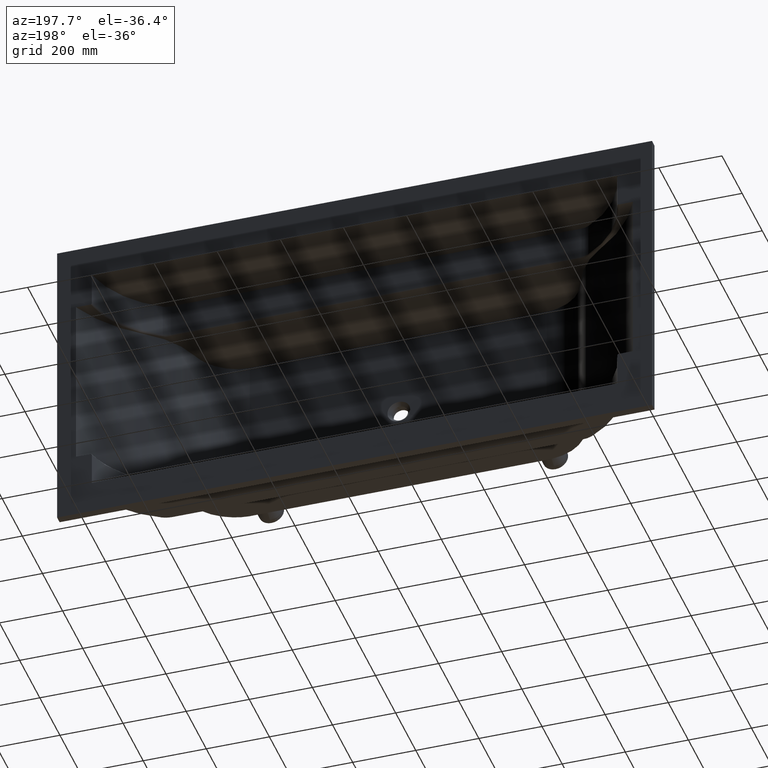
[diagram: clean part render]
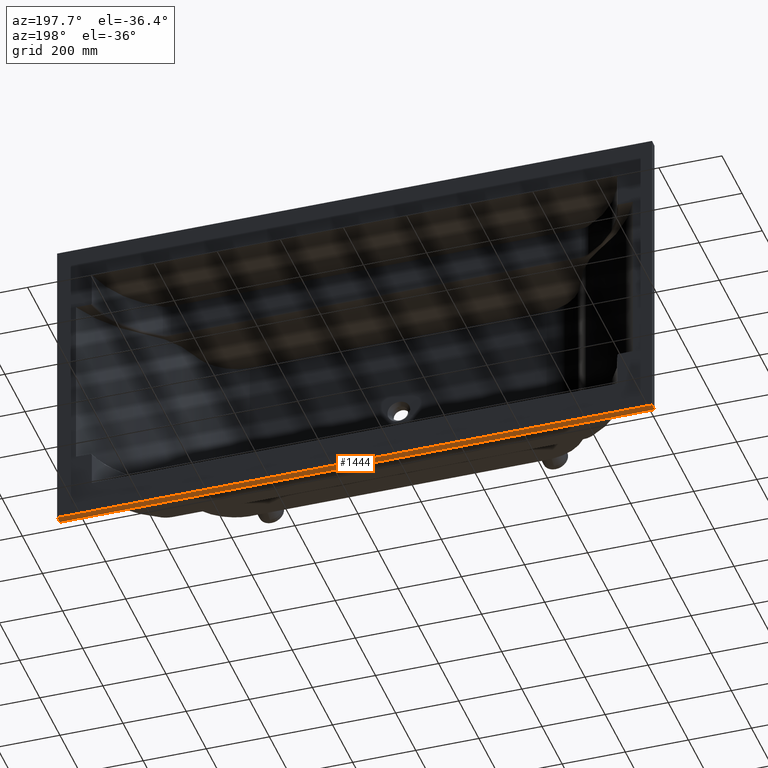
[diagram: same view with one face highlighted and labeled with its STEP entity id]
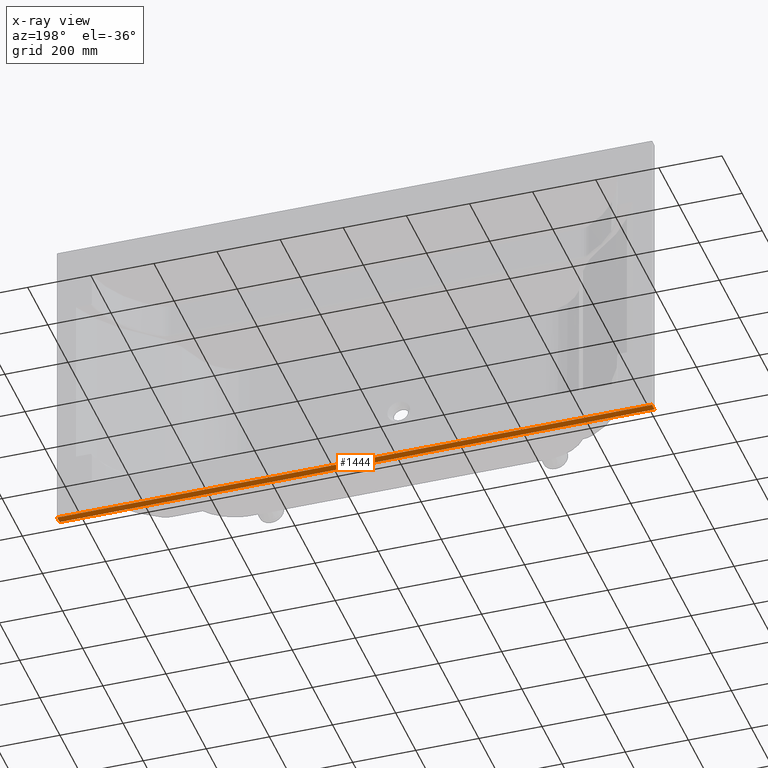
[diagram: x-ray of the same camera — body ghosted, the highlighted face saturated]
A machine part, auxiliary view. The second image highlights one B-rep face of the part: STEP entity #1444.
The next image is the same camera in x-ray: the body ghosted, the highlighted face saturated — about 0% of this face is hidden behind the body in this view.
In plain terms, the highlighted planar face has unit normal (0, 0, 1).
Its self-contained STEP definition (entity closure, byte-faithful):
#24 = PLANE ( 'NONE',  #2490 ) ;
#114 = VERTEX_POINT ( 'NONE', #409 ) ;
#131 = DIRECTION ( 'NONE',  ( -0.0000000000000000000, -1.000000000000000000, -0.0000000000000000000 ) ) ;
#304 = LINE ( 'NONE', #3903, #2663 ) ;
#409 = CARTESIAN_POINT ( 'NONE',  ( 1885.000000000000000, -9.999999999999998200, -990.0000000000000000 ) ) ;
#931 = DIRECTION ( 'NONE',  ( 1.000000000000000000, 0.0000000000000000000, -0.0000000000000000000 ) ) ;
#1038 = CARTESIAN_POINT ( 'NONE',  ( 1885.000000000000000, 15.00000000000000400, -990.0000000000000000 ) ) ;
#1114 = LINE ( 'NONE', #5572, #5433 ) ;
#1123 = CARTESIAN_POINT ( 'NONE',  ( 0.0000000000000000000, 15.00000000000000400, -990.0000000000000000 ) ) ;
#1172 = ORIENTED_EDGE ( 'NONE', *, *, #3179, .T. ) ;
#1282 = EDGE_CURVE ( 'NONE', #114, #3443, #304, .T. ) ;
#1306 = CARTESIAN_POINT ( 'NONE',  ( 0.0000000000000000000, 15.00000000000000400, -990.0000000000000000 ) ) ;
#1365 = CARTESIAN_POINT ( 'NONE',  ( 0.0000000000000000000, 15.00000000000000400, -990.0000000000000000 ) ) ;
#1383 = EDGE_CURVE ( 'NONE', #4559, #3032, #3582, .T. ) ;
#1444 = ADVANCED_FACE ( 'NONE', ( #5164 ), #24, .F. ) ;
#1477 = VECTOR ( 'NONE', #1612, 1000.000000000000000 ) ;
#1612 = DIRECTION ( 'NONE',  ( -0.0000000000000000000, -1.000000000000000000, -0.0000000000000000000 ) ) ;
#1842 = ORIENTED_EDGE ( 'NONE', *, *, #3912, .F. ) ;
#1929 = CARTESIAN_POINT ( 'NONE',  ( 0.0000000000000000000, -9.999999999999998200, -990.0000000000000000 ) ) ;
#2389 = VECTOR ( 'NONE', #3964, 1000.000000000000000 ) ;
#2490 = AXIS2_PLACEMENT_3D ( 'NONE', #1365, #3605, #931 ) ;
#2663 = VECTOR ( 'NONE', #5202, 1000.000000000000000 ) ;
#3032 = VERTEX_POINT ( 'NONE', #4707 ) ;
#3179 = EDGE_CURVE ( 'NONE', #4559, #114, #1114, .T. ) ;
#3443 = VERTEX_POINT ( 'NONE', #1929 ) ;
#3582 = LINE ( 'NONE', #1306, #2389 ) ;
#3605 = DIRECTION ( 'NONE',  ( 0.0000000000000000000, 0.0000000000000000000, 1.000000000000000000 ) ) ;
#3843 = LINE ( 'NONE', #1123, #1477 ) ;
#3903 = CARTESIAN_POINT ( 'NONE',  ( 1885.000000000000000, -9.999999999999998200, -990.0000000000000000 ) ) ;
#3912 = EDGE_CURVE ( 'NONE', #3032, #3443, #3843, .T. ) ;
#3964 = DIRECTION ( 'NONE',  ( -1.000000000000000000, -0.0000000000000000000, -0.0000000000000000000 ) ) ;
#4559 = VERTEX_POINT ( 'NONE', #1038 ) ;
#4707 = CARTESIAN_POINT ( 'NONE',  ( 0.0000000000000000000, 15.00000000000000400, -990.0000000000000000 ) ) ;
#5040 = ORIENTED_EDGE ( 'NONE', *, *, #1383, .F. ) ;
#5164 = FACE_OUTER_BOUND ( 'NONE', #5302, .T. ) ;
#5202 = DIRECTION ( 'NONE',  ( -1.000000000000000000, 0.0000000000000000000, 0.0000000000000000000 ) ) ;
#5244 = ORIENTED_EDGE ( 'NONE', *, *, #1282, .T. ) ;
#5302 = EDGE_LOOP ( 'NONE', ( #1172, #5244, #1842, #5040 ) ) ;
#5433 = VECTOR ( 'NONE', #131, 1000.000000000000000 ) ;
#5572 = CARTESIAN_POINT ( 'NONE',  ( 1885.000000000000000, 15.00000000000000400, -990.0000000000000000 ) ) ;